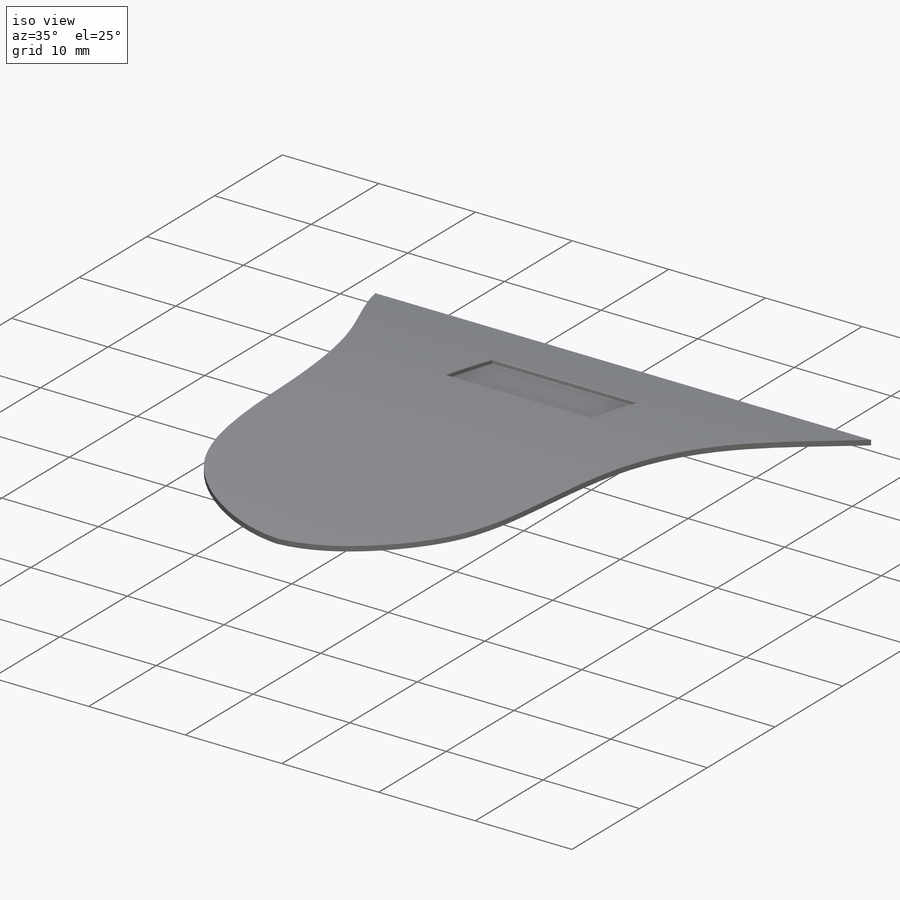
[diagram: iso view]
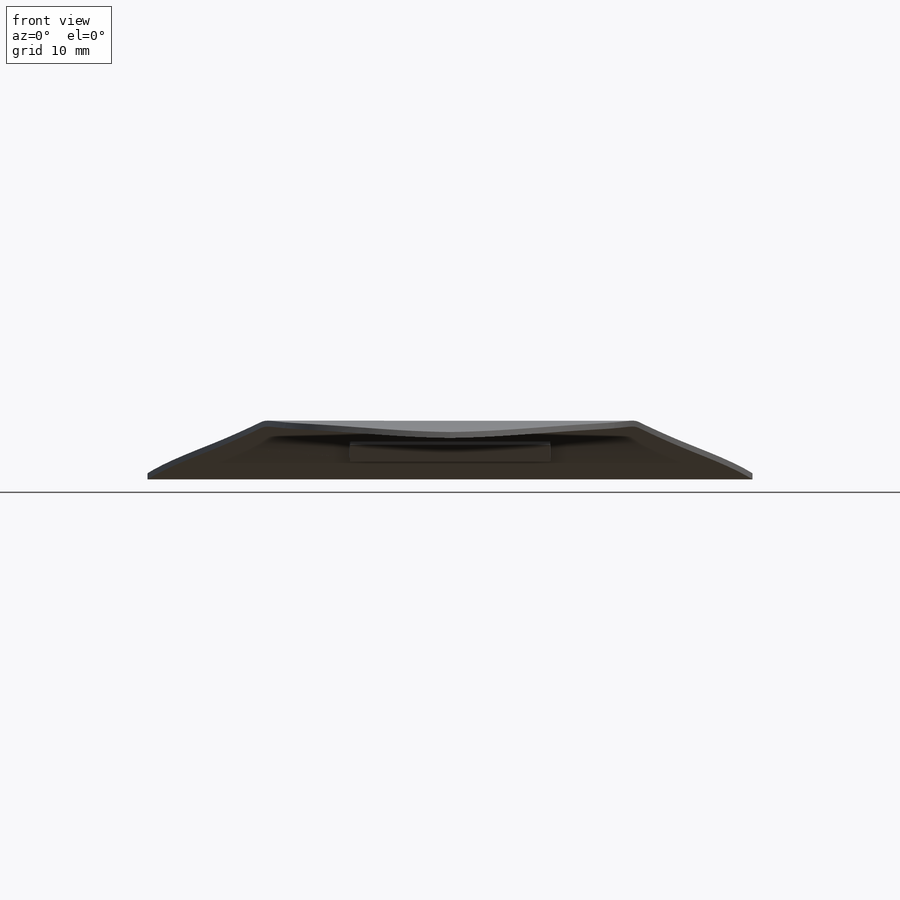
[diagram: front view]
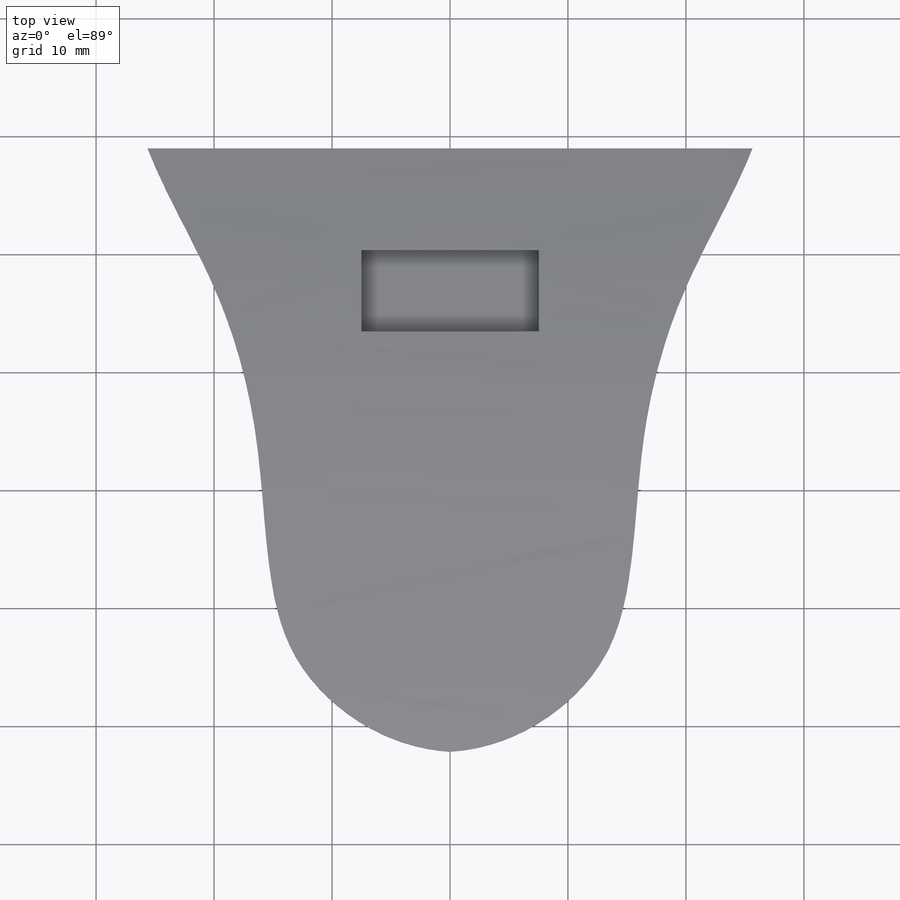
[diagram: top view]
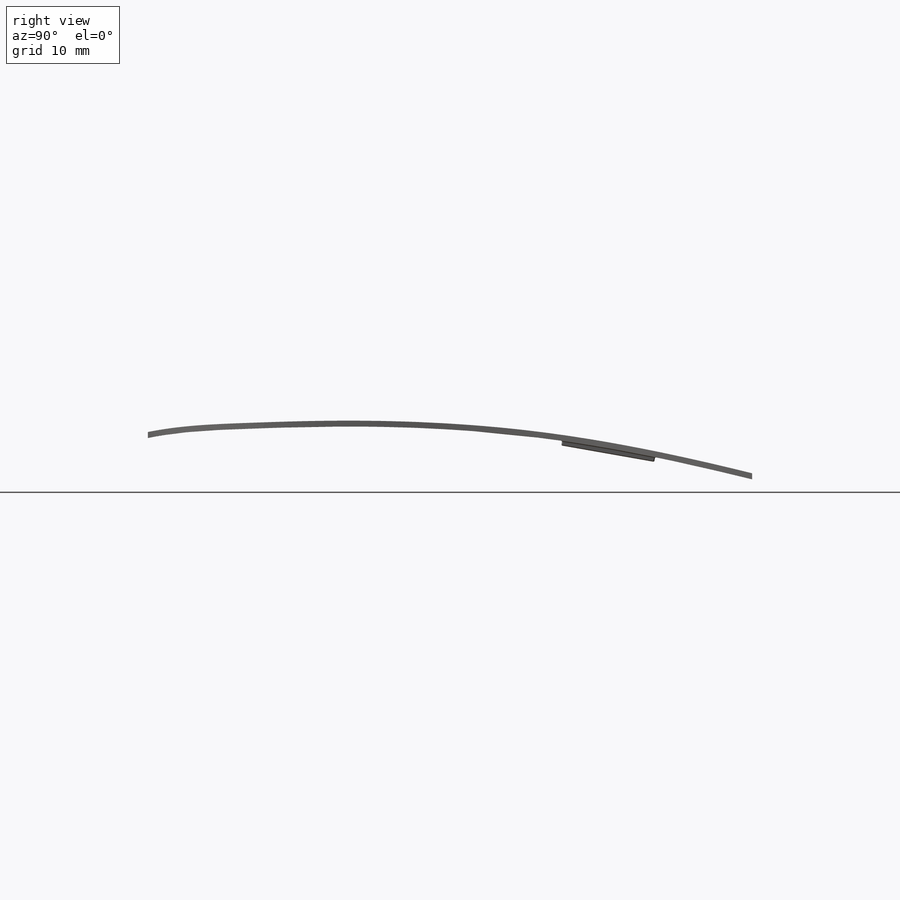
[diagram: right view]
SOLIDWORKS PART (.sldprt)
format: sldprt  version: not decoded by parser v0  size: 272,384 bytes
history: native  units: mm
features: plane x6, sketch x5, extrude x2, cut_extrude x2, fillet x2, material x1 (+8 scaffold rows collapsed)
feature tree (26):
  scaffold x8  (default folders/planes/origin — collapsed)
  material  "Matériau <non spécifié>"
  plane  "Plan de face"
  plane  "Plan de dessus"
  plane  "Plan de droite"
  sketch  "Esquisse1"
  extrude  "Extrusion1"  Depth=10mm
  sketch  "Esquisse2"  dims[D1=0.5mm]
  cut_extrude  "Extrusion2"  Depth=60mm
  sketch  "Esquisse3"  dims[D1=13.0mm]
  plane  "Plan1"
  plane  "Plan2"  Offset=5.2mm
  sketch  "Esquisse4"  dims[c1.D1=~4.503497mm c2.D1=90.0deg c3.D1=17.0mm c3.D2=~4.503497mm c4.D2=90.0deg c5.D2=~4.503497mm c6.D2=90.0deg c7.D2=8.0mm c7.D3=4.0mm c7.D4=8.5mm]
  extrude  "Extrusion3"  Depth=0.8mm
  plane  "Plan3"  Offset=0.387626mm
  sketch  "Esquisse5"  dims[D1=15.0mm D2=7.0mm D3=3.5mm D4=7.5mm]
  cut_extrude  "Extrusion7"  Depth=0.7mm
  fillet  "Congé2"  Radius=0.1mm
  fillet  "Congé5"  Radius=0.1mm
decode coverage: 10 of 11 modeling features carry decoded parameters
note: ~ marks probable driven/reference dimensions
note: suppression state not decoded; provenance and decode notes live in map.json
